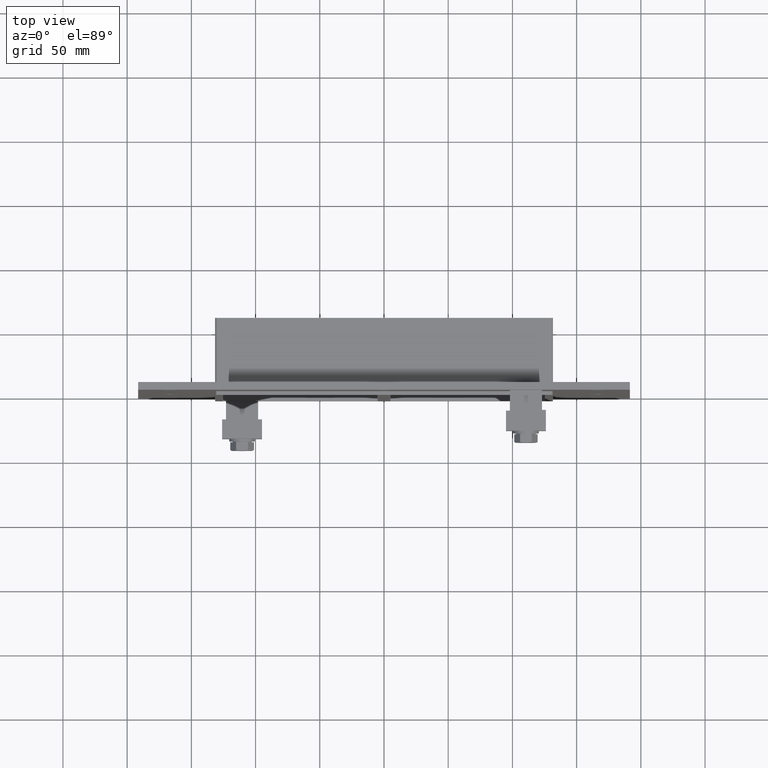
[diagram: clean part render]
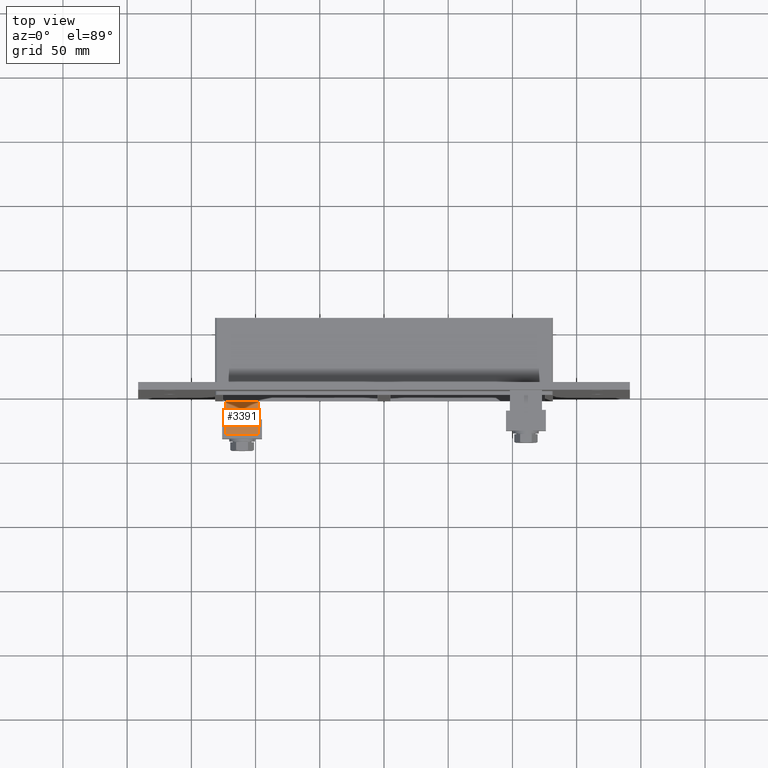
[diagram: same view with one face highlighted and labeled with its STEP entity id]
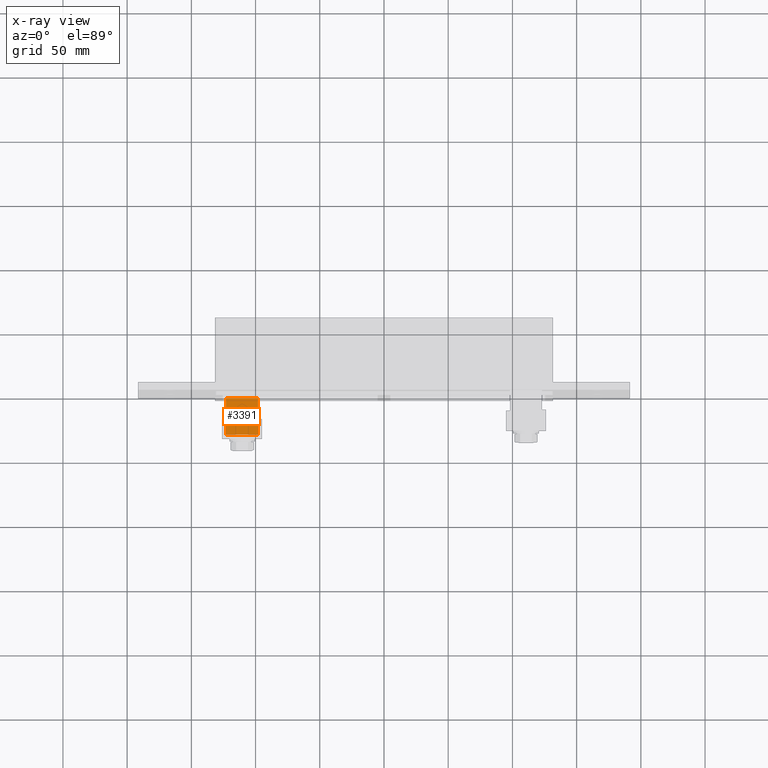
[diagram: x-ray of the same camera — body ghosted, the highlighted face saturated]
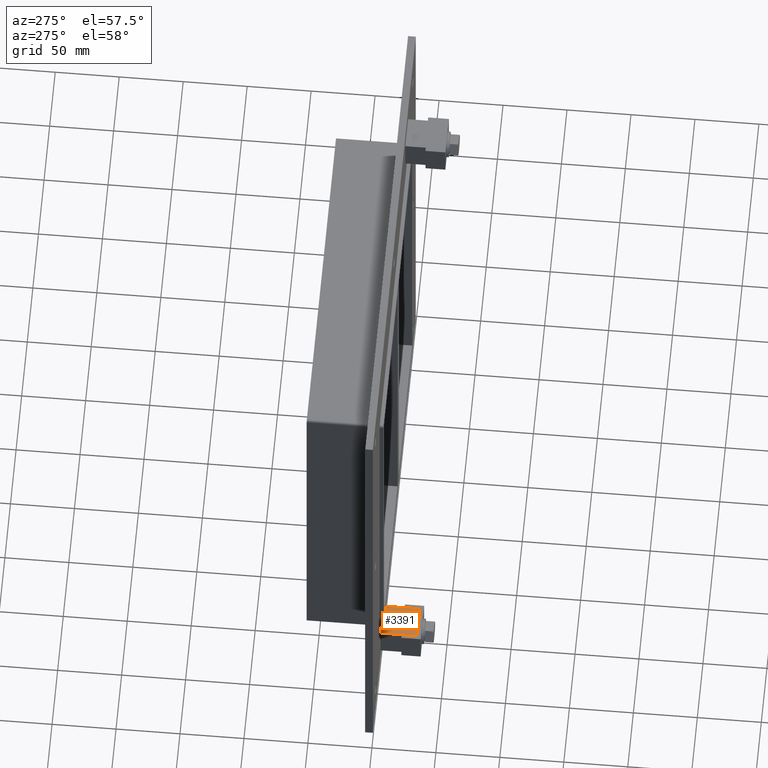
[diagram: same view with one face highlighted and labeled with its STEP entity id]
A machine part, top view. The second image highlights one B-rep face of the part: STEP entity #3391.
The next image is the same camera in x-ray: the body ghosted, the highlighted face saturated — about 0% of this face is hidden behind the body in this view.
A second angle (auxiliary view) of the same face is appended — the face is thin or edge-on in the first view.
In plain terms, the highlighted planar face has unit normal (0, 0, 1).
Its self-contained STEP definition (entity closure, byte-faithful):
#3328=CARTESIAN_POINT('',(-122.99999999999997,0.0,-167.49999999999994));
#3329=VERTEX_POINT('',#3328);
#3344=CARTESIAN_POINT('',(-122.99999999999997,-28.600000000000001,-167.49999999999994));
#3345=VERTEX_POINT('',#3344);
#3352=CARTESIAN_POINT('',(-122.99999999999997,0.0,-167.49999999999994));
#3353=DIRECTION('',(0.0,-1.0,0.0));
#3354=VECTOR('',#3353,28.600000000000001);
#3355=LINE('',#3352,#3354);
#3356=EDGE_CURVE('',#3329,#3345,#3355,.T.);
#3361=CARTESIAN_POINT('',(-98.000000000000043,0.0,-167.49999999999994));
#3362=DIRECTION('',(0.0,0.0,1.0));
#3363=DIRECTION('',(-1.0,0.0,0.0));
#3364=AXIS2_PLACEMENT_3D('',#3361,#3362,#3363);
#3365=PLANE('',#3364);
#3366=CARTESIAN_POINT('',(-98.000000000000043,0.0,-167.49999999999994));
#3367=VERTEX_POINT('',#3366);
#3368=CARTESIAN_POINT('',(-122.99999999999997,0.0,-167.49999999999994));
#3369=DIRECTION('',(1.0,0.0,0.0));
#3370=VECTOR('',#3369,24.999999999999929);
#3371=LINE('',#3368,#3370);
#3372=EDGE_CURVE('',#3329,#3367,#3371,.T.);
#3373=ORIENTED_EDGE('',*,*,#3372,.F.);
#3374=ORIENTED_EDGE('',*,*,#3356,.T.);
#3375=CARTESIAN_POINT('',(-98.000000000000043,-28.600000000000001,-167.49999999999994));
#3376=VERTEX_POINT('',#3375);
#3377=CARTESIAN_POINT('',(-98.000000000000043,-28.600000000000001,-167.49999999999994));
#3378=DIRECTION('',(-1.0,0.0,0.0));
#3379=VECTOR('',#3378,24.999999999999929);
#3380=LINE('',#3377,#3379);
#3381=EDGE_CURVE('',#3376,#3345,#3380,.T.);
#3382=ORIENTED_EDGE('',*,*,#3381,.F.);
#3383=CARTESIAN_POINT('',(-98.000000000000043,0.0,-167.49999999999994));
#3384=DIRECTION('',(0.0,-1.0,0.0));
#3385=VECTOR('',#3384,28.600000000000001);
#3386=LINE('',#3383,#3385);
#3387=EDGE_CURVE('',#3367,#3376,#3386,.T.);
#3388=ORIENTED_EDGE('',*,*,#3387,.F.);
#3389=EDGE_LOOP('',(#3373,#3374,#3382,#3388));
#3390=FACE_OUTER_BOUND('',#3389,.T.);
#3391=ADVANCED_FACE('',(#3390),#3365,.T.);